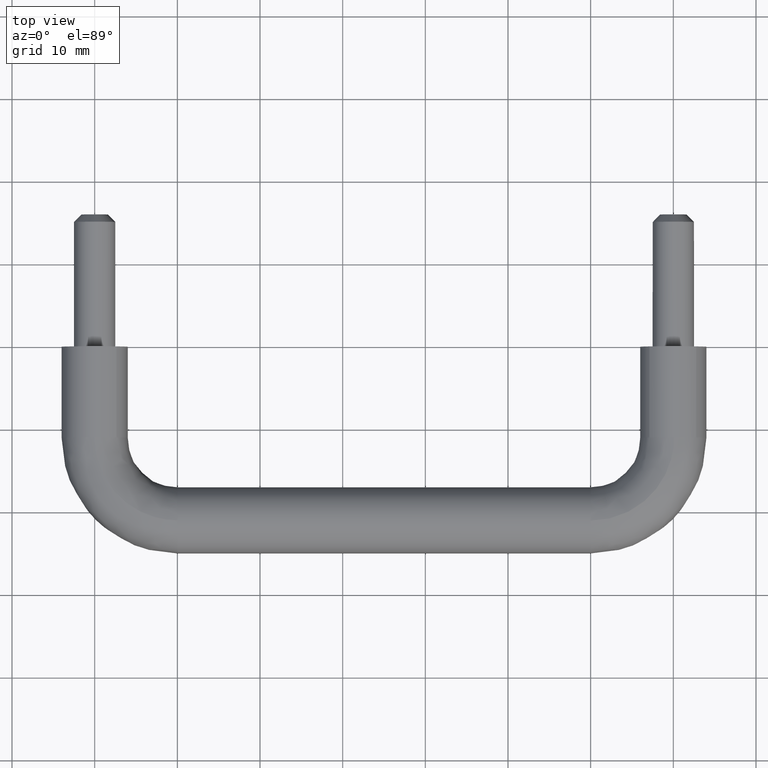
[diagram: clean part render]
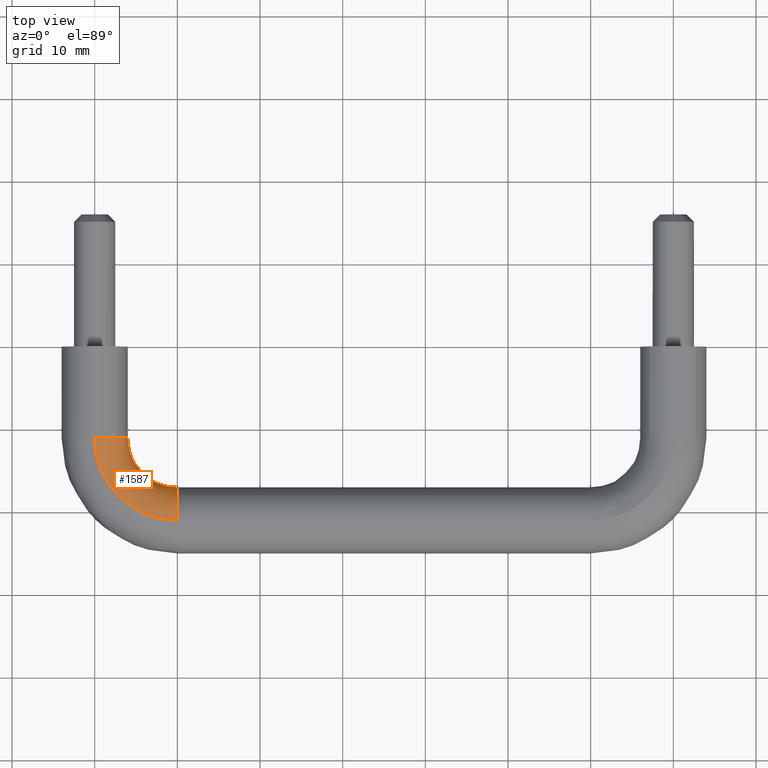
[diagram: same view with one face highlighted and labeled with its STEP entity id]
A machine part, top view. The second image highlights one B-rep face of the part: STEP entity #1587.
In plain terms, the highlighted face is a freeform B-spline surface patch.
Its self-contained STEP definition (entity closure, byte-faithful):
#963=CARTESIAN_POINT('',(10.000003123664021,-18.085144822978489,-2.739273498026444));
#964=VERTEX_POINT('',#963);
#970=CARTESIAN_POINT('',(10.0,-17.0,0.0));
#971=VERTEX_POINT('',#970);
#972=CARTESIAN_POINT('',(10.000003123664017,-18.085144822978492,-2.739273498026444));
#973=CARTESIAN_POINT('',(10.000001319486849,-17.0,-1.584572816330424));
#974=CARTESIAN_POINT('',(10.0,-17.0,0.0));
#982=(BOUNDED_CURVE()B_SPLINE_CURVE(2,(#972,#973,#974),.UNSPECIFIED.,.F.,.U.)B_SPLINE_CURVE_WITH_KNOTS((3,3),(0.379684537194316,0.500000000000000),.UNSPECIFIED.)CURVE()GEOMETRIC_REPRESENTATION_ITEM()RATIONAL_B_SPLINE_CURVE((0.853759070884319,0.859041667303252,1.0))REPRESENTATION_ITEM(''));
#983=EDGE_CURVE('',#964,#971,#982,.T.);
#985=CARTESIAN_POINT('',(9.999999999428301,-21.050264161945130,3.999684176784955));
#986=VERTEX_POINT('',#985);
#987=CARTESIAN_POINT('',(10.0,-17.0,0.0));
#988=CARTESIAN_POINT('',(10.000000000000002,-17.000000000000004,4.000000000000000));
#989=CARTESIAN_POINT('',(10.0,-21.0,4.0));
#990=CARTESIAN_POINT('',(10.0,-21.025133074379568,4.000000000000000));
#991=CARTESIAN_POINT('',(9.999999999428301,-21.050264161945130,3.999684176784955));
#999=(BOUNDED_CURVE()B_SPLINE_CURVE(2,(#987,#988,#989,#990,#991),.UNSPECIFIED.,.F.,.U.)B_SPLINE_CURVE_WITH_KNOTS((3,2,3),(0.500000000000000,0.750000000000000,0.752215704290359),.UNSPECIFIED.)CURVE()GEOMETRIC_REPRESENTATION_ITEM()RATIONAL_B_SPLINE_CURVE((1.0,0.707106781186548,1.0,0.997404140953831,0.994854295155869))REPRESENTATION_ITEM(''));
#1000=EDGE_CURVE('',#971,#986,#999,.T.);
#1136=CARTESIAN_POINT('',(10.000006212245570,-20.721064804414830,-3.990262542322404));
#1137=VERTEX_POINT('',#1136);
#1153=CARTESIAN_POINT('',(10.000006212245566,-20.721064804414830,-3.990262542322405));
#1154=CARTESIAN_POINT('',(10.000004907577436,-19.158101908533990,-3.881005229944941));
#1155=CARTESIAN_POINT('',(10.000003123664017,-18.085144822978492,-2.739273498026444));
#1163=(BOUNDED_CURVE()B_SPLINE_CURVE(2,(#1153,#1154,#1155),.UNSPECIFIED.,.F.,.U.)B_SPLINE_CURVE_WITH_KNOTS((3,3),(0.262166407824162,0.379684537194316),.UNSPECIFIED.)CURVE()GEOMETRIC_REPRESENTATION_ITEM()RATIONAL_B_SPLINE_CURVE((0.972879676809105,0.848599294784940,0.853759070884319))REPRESENTATION_ITEM(''));
#1164=EDGE_CURVE('',#1137,#964,#1163,.T.);
#1188=CARTESIAN_POINT('',(2.635877884242773,-10.999999999999989,3.008678743129542));
#1189=VERTEX_POINT('',#1188);
#1190=CARTESIAN_POINT('',(-0.050264159935794,-11.000000000048550,3.999684176810208));
#1191=VERTEX_POINT('',#1190);
#1192=CARTESIAN_POINT('',(2.635877884242773,-10.999999999999993,3.008678743129542));
#1193=CARTESIAN_POINT('',(1.504350502117724,-11.000000000000002,4.000000000000001));
#1194=CARTESIAN_POINT('',(1.347067E-015,-11.0,4.0));
#1195=CARTESIAN_POINT('',(-0.025133072370000,-10.999999999999998,4.0));
#1196=CARTESIAN_POINT('',(-0.050264159935794,-11.000000000048548,3.999684176810208));
#1204=(BOUNDED_CURVE()B_SPLINE_CURVE(2,(#1192,#1193,#1194,#1195,#1196),.UNSPECIFIED.,.F.,.U.)B_SPLINE_CURVE_WITH_KNOTS((3,2,3),(0.634954760682260,0.750000000000000,0.752215704113659),.UNSPECIFIED.)CURVE()GEOMETRIC_REPRESENTATION_ITEM()RATIONAL_B_SPLINE_CURVE((0.854482187890157,0.865216118188253,1.0,0.997404141160849,0.994854295562566))REPRESENTATION_ITEM(''));
#1205=EDGE_CURVE('',#1189,#1191,#1204,.T.);
#1306=CARTESIAN_POINT('',(4.000000000000002,-11.0,0.0));
#1307=VERTEX_POINT('',#1306);
#1308=CARTESIAN_POINT('',(4.000000000000002,-11.0,0.0));
#1309=CARTESIAN_POINT('',(4.000000000000002,-11.0,1.813583271575528));
#1310=CARTESIAN_POINT('',(2.635877884242773,-10.999999999999991,3.008678743129541));
#1318=(BOUNDED_CURVE()B_SPLINE_CURVE(2,(#1308,#1309,#1310),.UNSPECIFIED.,.F.,.U.)B_SPLINE_CURVE_WITH_KNOTS((3,3),(0.500000000000000,0.634954760682260),.UNSPECIFIED.)CURVE()GEOMETRIC_REPRESENTATION_ITEM()RATIONAL_B_SPLINE_CURVE((1.0,0.841890662998295,0.854482187890157))REPRESENTATION_ITEM(''));
#1319=EDGE_CURVE('',#1307,#1189,#1318,.T.);
#1321=CARTESIAN_POINT('',(0.278933007061322,-11.000000000423221,-3.990262695308634));
#1322=VERTEX_POINT('',#1321);
#1323=CARTESIAN_POINT('',(0.278933007061322,-11.000000000423213,-3.990262695308634));
#1324=CARTESIAN_POINT('',(4.000000000000002,-11.0,-3.730147387642936));
#1325=CARTESIAN_POINT('',(4.000000000000002,-11.0,0.0));
#1333=(BOUNDED_CURVE()B_SPLINE_CURVE(2,(#1323,#1324,#1325),.UNSPECIFIED.,.F.,.U.)B_SPLINE_CURVE_WITH_KNOTS((3,3),(0.262166313530340,0.500000000000000),.UNSPECIFIED.)CURVE()GEOMETRIC_REPRESENTATION_ITEM()RATIONAL_B_SPLINE_CURVE((0.972879876248583,0.721360504110527,1.0))REPRESENTATION_ITEM(''));
#1334=EDGE_CURVE('',#1322,#1307,#1333,.T.);
#1522=CARTESIAN_POINT('',(-0.050264159935794,-11.000000000048548,3.999684176810208));
#1523=CARTESIAN_POINT('',(-0.050264159436309,-21.050264158390000,3.999684176815263));
#1524=CARTESIAN_POINT('',(9.999999999428301,-21.050264161945133,3.999684176784955));
#1532=(BOUNDED_CURVE()B_SPLINE_CURVE(2,(#1522,#1523,#1524),.UNSPECIFIED.,.F.,.U.)B_SPLINE_CURVE_WITH_KNOTS((3,3),(-1.744561813305418,-0.255438186804204),.UNSPECIFIED.)CURVE()GEOMETRIC_REPRESENTATION_ITEM()RATIONAL_B_SPLINE_CURVE((0.894678510038834,0.632633241455739,0.894678510000253))REPRESENTATION_ITEM(''));
#1533=EDGE_CURVE('',#1191,#986,#1532,.T.);
#1538=CARTESIAN_POINT('',(0.278933007061322,-11.000000000423217,-3.990262695308635));
#1539=CARTESIAN_POINT('',(0.278933007527282,-20.721072111094859,-3.990262618815520));
#1540=CARTESIAN_POINT('',(10.000006212245566,-20.721064804414826,-3.990262542322404));
#1548=(BOUNDED_CURVE()B_SPLINE_CURVE(2,(#1538,#1539,#1540),.UNSPECIFIED.,.F.,.U.)B_SPLINE_CURVE_WITH_KNOTS((3,3),(-1.744561813223906,-0.255437513784314),.UNSPECIFIED.)CURVE()GEOMETRIC_REPRESENTATION_ITEM()RATIONAL_B_SPLINE_CURVE((0.874553433381659,0.618402547543689,0.874553664910375))REPRESENTATION_ITEM(''));
#1549=EDGE_CURVE('',#1322,#1137,#1548,.T.);
#1554=CARTESIAN_POINT('',(-0.025936112443889,-10.301133241887138,3.999684176815264));
#1555=CARTESIAN_POINT('',(-0.829534019184369,-21.829541453531654,3.999684176815264));
#1556=CARTESIAN_POINT('',(10.698873640797130,-21.025935632677903,3.999684176815263));
#1557=CARTESIAN_POINT('',(3.964066278554387,-10.579259893063236,4.049948336348670));
#1558=CARTESIAN_POINT('',(3.480274675518166,-17.519729800196316,4.049948336348670));
#1559=CARTESIAN_POINT('',(10.420744250532497,-17.035933432611184,4.049948336348670));
#1560=CARTESIAN_POINT('',(4.014208766774419,-10.582755119622931,0.050264159533408));
#1561=CARTESIAN_POINT('',(3.534436179830110,-17.465568258703144,0.050264159533408));
#1562=CARTESIAN_POINT('',(10.417248989550583,-16.985790946790580,0.050264159533408));
#1563=CARTESIAN_POINT('',(4.061560998010191,-10.586055848847817,-3.726851351358791));
#1564=CARTESIAN_POINT('',(3.585583782737294,-17.414420620683725,-3.726851351358792));
#1565=CARTESIAN_POINT('',(10.413948227818963,-16.938438717820738,-3.726851351358790));
#1566=CARTESIAN_POINT('',(0.302464186361218,-10.324024675626116,-3.990262695361730));
#1567=CARTESIAN_POINT('',(-0.474811809912948,-21.474819000747615,-3.990262695361729));
#1568=CARTESIAN_POINT('',(10.675981981615307,-20.697535349587572,-3.990262695361729));
#1576=(BOUNDED_SURFACE()B_SPLINE_SURFACE(2,2,((#1554,#1557,#1560,#1563,#1566),(#1555,#1558,#1561,#1564,#1567),(#1556,#1559,#1562,#1565,#1568)),.UNSPECIFIED.,.F.,.F.,.U.)B_SPLINE_SURFACE_WITH_KNOTS((3,3),(3,2,3),(0.0,18.315348612246851),(0.0,6.627416997969518,12.989737316020260),.UNSPECIFIED.)GEOMETRIC_REPRESENTATION_ITEM()RATIONAL_B_SPLINE_SURFACE(((0.922164444660819,0.652068732188792,0.922164444660819,0.662872560687673,0.901421093942967),(0.605147162606616,0.427903662294936,0.605147162606616,0.434993402307404,0.591534861782679),(0.922164733076645,0.652068936129578,0.922164733076645,0.662872768007461,0.901421375871110)))REPRESENTATION_ITEM('')SURFACE());
#1577=ORIENTED_EDGE('',*,*,#983,.F.);
#1578=ORIENTED_EDGE('',*,*,#1164,.F.);
#1579=ORIENTED_EDGE('',*,*,#1549,.F.);
#1580=ORIENTED_EDGE('',*,*,#1334,.T.);
#1581=ORIENTED_EDGE('',*,*,#1319,.T.);
#1582=ORIENTED_EDGE('',*,*,#1205,.T.);
#1583=ORIENTED_EDGE('',*,*,#1533,.T.);
#1584=ORIENTED_EDGE('',*,*,#1000,.F.);
#1585=EDGE_LOOP('',(#1577,#1578,#1579,#1580,#1581,#1582,#1583,#1584));
#1586=FACE_OUTER_BOUND('',#1585,.T.);
#1587=ADVANCED_FACE('',(#1586),#1576,.T.);